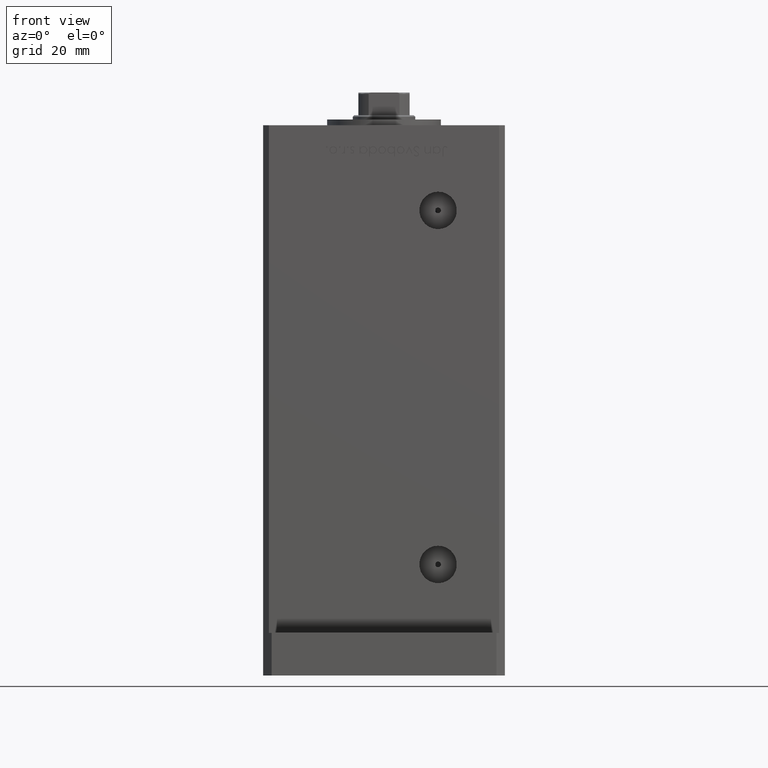
[diagram: clean part render]
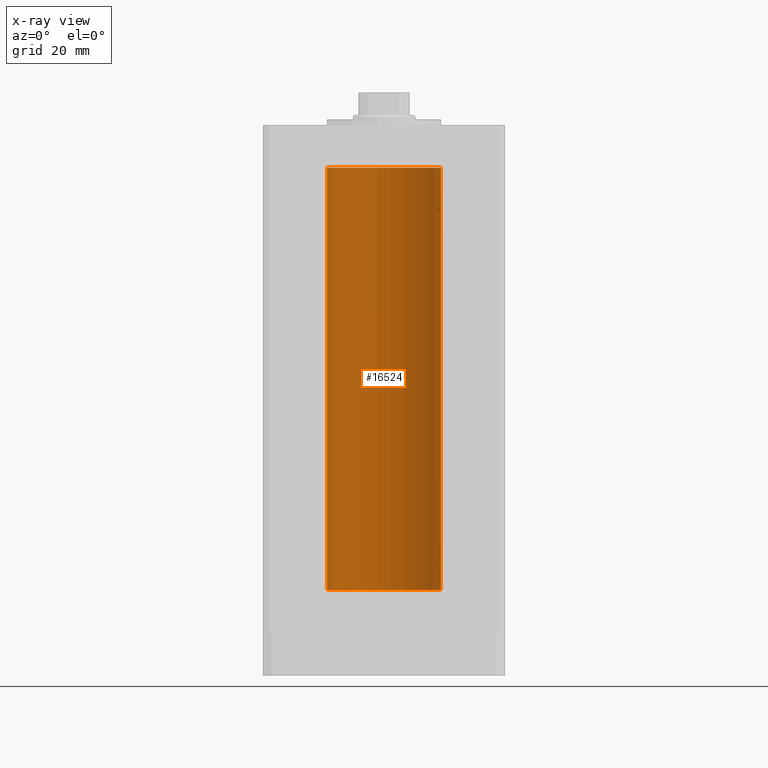
[diagram: x-ray — body ghosted, one internal face saturated and labeled with its STEP entity id]
A machine part, front view, then the same camera in x-ray: the body is ghosted and one INTERNAL B-rep face — a face not visible from any outside direction — is saturated and labeled: STEP entity #16524.
In plain terms, the highlighted cylindrical surface (partial cylindrical patch) has radius 20 mm, axis along (-0, -0, -1).
Its self-contained STEP definition (entity closure, byte-faithful):
#2267 = CARTESIAN_POINT ( 'NONE',  ( 20.00000000000000000, 2.449293598294706513E-15, 148.5000000000000000 ) ) ;
#2312 = DIRECTION ( 'NONE',  ( -0.000000000000000000, -0.000000000000000000, -1.000000000000000000 ) ) ;
#3850 = ORIENTED_EDGE ( 'NONE', *, *, #28126, .T. ) ;
#4557 = CIRCLE ( 'NONE', #28809, 20.00000000000000000 ) ;
#5581 = DIRECTION ( 'NONE',  ( -0.000000000000000000, -0.000000000000000000, -1.000000000000000000 ) ) ;
#6417 = FACE_OUTER_BOUND ( 'NONE', #20047, .T. ) ;
#9322 = DIRECTION ( 'NONE',  ( -0.000000000000000000, 0.000000000000000000, 1.000000000000000000 ) ) ;
#11582 = VECTOR ( 'NONE', #19924, 1000.000000000000000 ) ;
#13176 = DIRECTION ( 'NONE',  ( 1.000000000000000000, 0.000000000000000000, 0.000000000000000000 ) ) ;
#13541 = VERTEX_POINT ( 'NONE', #23585 ) ;
#14060 = EDGE_CURVE ( 'NONE', #29872, #16140, #46091, .T. ) ;
#14365 = EDGE_CURVE ( 'NONE', #31510, #13541, #4557, .T. ) ;
#15571 = CARTESIAN_POINT ( 'NONE',  ( -20.00000000000000000, 0.000000000000000000, 148.5000000000000000 ) ) ;
#16016 = CARTESIAN_POINT ( 'NONE',  ( -20.00000000000000000, 0.000000000000000000, 148.5000000000000000 ) ) ;
#16140 = VERTEX_POINT ( 'NONE', #16016 ) ;
#16524 = ADVANCED_FACE ( 'NONE', ( #6417 ), #22427, .F. ) ;
#18463 = AXIS2_PLACEMENT_3D ( 'NONE', #38994, #2312, #47136 ) ;
#18771 = CARTESIAN_POINT ( 'NONE',  ( 20.00000000000000000, 2.449293598294706513E-15, 148.5000000000000000 ) ) ;
#18926 = CARTESIAN_POINT ( 'NONE',  ( 20.00000000000000000, 2.449293598294706513E-15, 0.000000000000000000 ) ) ;
#19924 = DIRECTION ( 'NONE',  ( -0.000000000000000000, -0.000000000000000000, -1.000000000000000000 ) ) ;
#20047 = EDGE_LOOP ( 'NONE', ( #51465, #37518, #3850, #49569 ) ) ;
#22427 = CYLINDRICAL_SURFACE ( 'NONE', #18463, 20.00000000000000000 ) ;
#23585 = CARTESIAN_POINT ( 'NONE',  ( -20.00000000000000000, 0.000000000000000000, 0.000000000000000000 ) ) ;
#25863 = DIRECTION ( 'NONE',  ( 1.000000000000000000, 0.000000000000000000, 0.000000000000000000 ) ) ;
#28126 = EDGE_CURVE ( 'NONE', #16140, #13541, #36201, .T. ) ;
#28809 = AXIS2_PLACEMENT_3D ( 'NONE', #34004, #9322, #25863 ) ;
#29872 = VERTEX_POINT ( 'NONE', #18771 ) ;
#30801 = LINE ( 'NONE', #2267, #37003 ) ;
#31510 = VERTEX_POINT ( 'NONE', #18926 ) ;
#34004 = CARTESIAN_POINT ( 'NONE',  ( 0.000000000000000000, 0.000000000000000000, 0.000000000000000000 ) ) ;
#34340 = CARTESIAN_POINT ( 'NONE',  ( 0.000000000000000000, 0.000000000000000000, 148.5000000000000000 ) ) ;
#36201 = LINE ( 'NONE', #15571, #11582 ) ;
#37003 = VECTOR ( 'NONE', #5581, 1000.000000000000000 ) ;
#37518 = ORIENTED_EDGE ( 'NONE', *, *, #14060, .T. ) ;
#38994 = CARTESIAN_POINT ( 'NONE',  ( 0.000000000000000000, 0.000000000000000000, 148.5000000000000000 ) ) ;
#42381 = EDGE_CURVE ( 'NONE', #29872, #31510, #30801, .T. ) ;
#43490 = AXIS2_PLACEMENT_3D ( 'NONE', #34340, #46829, #13176 ) ;
#46091 = CIRCLE ( 'NONE', #43490, 20.00000000000000000 ) ;
#46829 = DIRECTION ( 'NONE',  ( -0.000000000000000000, 0.000000000000000000, 1.000000000000000000 ) ) ;
#47136 = DIRECTION ( 'NONE',  ( -1.000000000000000000, 0.000000000000000000, 0.000000000000000000 ) ) ;
#49569 = ORIENTED_EDGE ( 'NONE', *, *, #14365, .F. ) ;
#51465 = ORIENTED_EDGE ( 'NONE', *, *, #42381, .F. ) ;